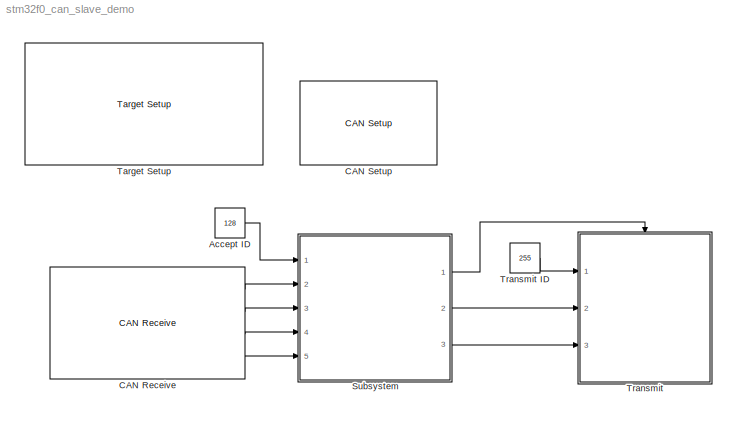
MODEL stm32f0_can_slave_demo
KIND model
CONFIG PreLoadFcn = waijung.modelPreload; % Required for working with Waijung Blockset. Do not remove.
BLOCK [Constant] Accept ID
  OutDataType = fixdt(1, 16)
  OutDataTypeMode = uint32
  OutDataTypeStr = uint32
  OutScaling = 2^0
  Value = 128
BLOCK [Reference] CAN Receive  REF=stm32f0_can_lib/CAN Receive
  Ports = [0, 4]
  SourceBlock = stm32f0_can_lib/CAN Receive
  SourceType = stm32f0_can
  blockid = CANReceive
  buffersize = 8
  canmodule = 1
  compat = 0
  conf = Rx
  confstr = [\"Standard\",\"Mask\",\"0\",\"0\",\"off\",\"uint32\",\"uint32\",\"Not used\",\"Not used\",\"Not used\",\"Not used\",\"Not used\",\"Not used\",\"8\",\"0\",\"0\",\"0\",\"4\"]
  data0type = uint32
  data1type = uint32
  data2type = Not used
  data3type = Not used
  data4type = Not used
  data5type = Not used
  data6type = Not used
  data7type = Not used
  datatype = single
  enableisr = off
  filtertype = Mask
  id = 0
  idmask = 0
  idtype = Standard
  inputarray = []
  inputlabelarray = {}
  outputarray = [ 5, 7, 7, 7]
  outputlabelarray = { 'Msg Pending','ID', 'D0 (uint32)', 'D1 (uint32)' }
  sampletime = inf
  sampletimestr = 0.01
  usedlc = off
BLOCK [Reference] CAN Setup  REF=stm32f0_can_lib/CAN Setup
  Ports = []
  SourceBlock = stm32f0_can_lib/CAN Setup
  SourceType = stm32f0_can
  advance = off
  autoretransmission = Enable
  bitrate = 250000
  bitrate_select = 250000
  blockid = CANSetup
  brp = 8
  bs1 = 15tq
  bs2 = 8tq
  canmodule = 1
  compat = 0
  conf = Setup
  confstr = [\"250000\",\"8\",\"B\",\"9\",\"B\",\"8\",\"1tq\",\"15tq\",\"8tq\",\"DISABLE\"]
  inputarray = []
  inputlabelarray = {}
  lastmodule = 1
  outputarray = []
  outputlabelarray = {}
  presc = 8
  remaprxpin = B8
  remaptxpin = B9
  rxpinstr = 8
  rxportstr = B
  sampletime = -1
  sampletimestr = 0.01
  sjw = 1tq
  timingconf = Prescaler
  tq = 1.6667e-007
  txpinstr = 9
  txportstr = B
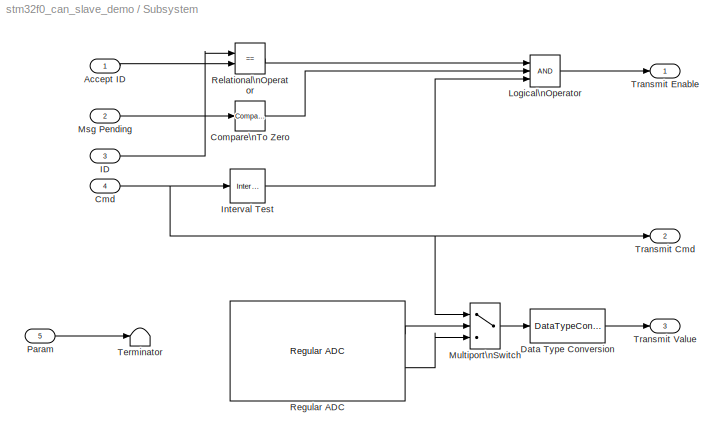
BLOCK [SubSystem] Subsystem
  FunctionWithSeparateData = off
  MaskHideContents = off
  MinAlgLoopOccurrences = off
  Opaque = off
  Ports = [5, 3]
  PropExecContextOutsideSubsystem = off
  RTWSystemCode = Auto
  RequestExecContextInheritance = off
BLOCK [Inport] Subsystem/Accept ID
  IconDisplay = Port number
  OutDataType = fixdt(1, 16)
  OutScaling = 2^0
BLOCK [Inport] Subsystem/Cmd
  IconDisplay = Port number
  OutDataType = fixdt(1, 16)
  OutScaling = 2^0
  Port = 4
BLOCK [Reference] Subsystem/Compare\nTo Zero  REF=simulink/Logic and Bit\nOperations/Compare\nTo Zero
  FunctionWithSeparateData = off
  LogicOutDataTypeMode = uint8
  Ports = [1, 1]
  RTWMemSecDataConstants = Inherit from model
  RTWMemSecDataInternal = Inherit from model
  RTWMemSecDataParameters = Inherit from model
  RTWMemSecFuncExecute = Inherit from model
  RTWMemSecFuncInitTerm = Inherit from model
  ShowPortLabels = FromPortIcon
  SourceBlock = simulink/Logic and Bit\nOperations/Compare\nTo Zero
  SourceType = Compare To Zero
  SystemSampleTime = -1
  ZeroCross = off
  relop = >
BLOCK [DataTypeConversion] Subsystem/Data Type Conversion
  OutDataType = fixdt(1, 16)
  OutDataTypeMode = uint32
  OutDataTypeStr = uint32
  OutScaling = 2^0
  RndMeth = Floor
  SaturateOnIntegerOverflow = off
BLOCK [Inport] Subsystem/ID
  IconDisplay = Port number
  OutDataType = fixdt(1, 16)
  OutScaling = 2^0
  Port = 3
BLOCK [Reference] Subsystem/Interval Test  REF=simulink/Logic and Bit\nOperations/Interval Test
  FunctionWithSeparateData = off
  IntervalClosedLeft = on
  IntervalClosedRight = on
  LogicOutDataTypeMode = uint8
  Ports = [1, 1]
  RTWMemSecDataConstants = Inherit from model
  RTWMemSecDataInternal = Inherit from model
  RTWMemSecDataParameters = Inherit from model
  RTWMemSecFuncExecute = Inherit from model
  RTWMemSecFuncInitTerm = Inherit from model
  ShowPortLabels = FromPortIcon
  SourceBlock = simulink/Logic and Bit\nOperations/Interval Test
  SourceType = Interval Test
  SystemSampleTime = -1
  lowlimit = 0
  uplimit = 1
BLOCK [Logic] Subsystem/Logical\nOperator
  AllPortsSameDT = off
  Inputs = 3
  LogicDataType = fixdt(0, 8)
  OutDataTypeMode = boolean
  OutDataTypeStr = boolean
  Ports = [3, 1]
BLOCK [Inport] Subsystem/Msg Pending
  IconDisplay = Port number
  OutDataType = fixdt(1, 16)
  OutScaling = 2^0
  Port = 2
BLOCK [MultiPortSwitch] Subsystem/Multiport\nSwitch
  InputSameDT = off
  Inputs = 2
  OutDataType = fixdt(1, 16)
  OutScaling = 2^0
  Ports = [3, 1]
  SaturateOnIntegerOverflow = off
  zeroidx = on
BLOCK [Inport] Subsystem/Param
  IconDisplay = Port number
  OutDataType = fixdt(1, 16)
  OutScaling = 2^0
  Port = 5
BLOCK [Reference] Subsystem/Regular ADC  REF=stm32f0_adc_lib/Regular ADC
  Ports = [0, 2]
  SourceBlock = stm32f0_adc_lib/Regular ADC
  SourceType = stm32f0_adc
  adc_ch0 = off
  adc_ch1 = off
  adc_ch10 = off
  adc_ch11 = off
  adc_ch12 = off
  adc_ch13 = off
  adc_ch14 = off
  adc_ch15 = off
  adc_ch16 = off
  adc_ch17 = off
  adc_ch18 = off
  adc_ch2 = off
  adc_ch3 = off
  adc_ch4 = off
  adc_ch5 = off
  adc_ch6 = on
  adc_ch7 = on
  adc_ch8 = off
  adc_ch9 = off
  blockid = SubsystemRegularADC
  compat = 0
  conf = adc
  coutputportlabel = voltage,current
  enablecustomportlabel = off
  inputportlabel = {}
  inputporttype = []
  inputportwidth = []
  module = 1
  optionstring = [\"1\",\"ADC_SampleTime_28_5Cycles\",\"dummy\",\"dummy\",\"dummy\",\"0\",\"A\",\"0\",\"0\",\"A\",\"1\",\"0\",\"A\",\"2\",\"0\",\"A\",\"3\",\"0\",\"A\",\"4\",\"0\",\"A\",\"5\",\"1\",\"A\",\"6\",\"1\",\"A\",\"7\",\"0\",\"B\",\"0\",\"0\",\"B\",\"1\",\"0\",\"C\",\"0\",\"0\",\"C\",\"1\",\"0\",\"C\",\"2\",\"0\",\"C\",\"3\",\"0\",\"C\",\"4\",\"0\",\"C\",\"5\",\"0\",\"A\",\"0\",\"0\",\"A\",\"0\",\"0\",\"A...<+61ch>
  outputdatatype = Single
  outputportlabel = {'ADC_IN6' 'ADC_IN7'}
  outputporttype = [1 1]
  outputportwidth = []
  portpinstr = 0
  sampletime = inf
  samplingtime = 28.5 Cycles
BLOCK [RelationalOperator] Subsystem/Relational\nOperator
  InputSameDT = off
  LogicDataType = fixdt(0, 8)
  LogicOutDataTypeMode = boolean
  Operator = ==
  OutDataTypeStr = boolean
BLOCK [Terminator] Subsystem/Terminator
BLOCK [Outport] Subsystem/Transmit Cmd
  IconDisplay = Port number
  OutDataType = fixdt(1, 16)
  OutScaling = 2^0
  Port = 2
BLOCK [Outport] Subsystem/Transmit Enable
  IconDisplay = Port number
  OutDataType = fixdt(1, 16)
  OutScaling = 2^0
BLOCK [Outport] Subsystem/Transmit Value
  IconDisplay = Port number
  OutDataType = fixdt(1, 16)
  OutScaling = 2^0
  Port = 3
BLOCK [Reference] Target Setup  REF=stm32f0_device_config_lib/Target Setup
  Ports = []
  Priority = 100
  SourceBlock = stm32f0_device_config_lib/Target Setup
  SourceType = stm32f0_target_setup
  assemblercontrolstr = $(patsubst %, -I%, .) -mcpu=cortex-m0 -mtune=cortex-m0 -mthumb -Wall -O3 -Wa,-amhls=$(<:.s=.lst) -D__STACK_SIZE=$(STACK_SIZE) -D__HEAP_SIZE=$(HEAP_SIZE)
  blockid = TargetSetup
  clockconfig = STM32F072B-DISCO Default (HSIOSC-8MHz/HCLK-48MHz)
  compiler = GNU ARM
  compilercontrolstr = $(patsubst %, -I%, .) -mcpu=cortex-m0 -mthumb -mabi=aapcs -Wall -O3 -mfloat-abi=soft -ffunction-sections -fdata-sections -fno-strict-aliasing -fno-builtin --short-enums
  editctrlstr = off
  enableautocompiledownload = on
  execprofile = None
  flashlength = 128k
  flashorigin = 0x8000000
  fullchiperase = off
  hclk = 48000000
  heapsize = 0x200
  hseval = 8000000
  lastprofileruart = 3
  linkercontrolstr = -T$(LD_SCRIPT) -Wl,-Map=$(MAP),--cref,--no-warn-mismatch -mcpu=cortex-m0 -mthumb  -Wall -O3 -mabi=aapcs -lc -specs=nosys.specs
  manualsetsampletime = on
  mcu = STM32F072CB (LQFP48)
  mcustr = STM32F072CB
  previous_compiler = GNU ARM
  profilerbaud = 500000
  profilerinitstr = 0.01,48000000,480000,500000,0
  profilertxpin = Not used
  profileruart = 3
  programmerinterface = aMG USB Connect
  ramlength = 16k
  ramorigin = 0x20000000
  runafterdownload = on
  sampletime = 0.01
  showmemoryconfiguration = off
  stacksize = 0x400
  stdlib = STM32F072
  system_stm32f0xx_c_path = <path>
  systickreloadvalue = 480000
  useextram = off
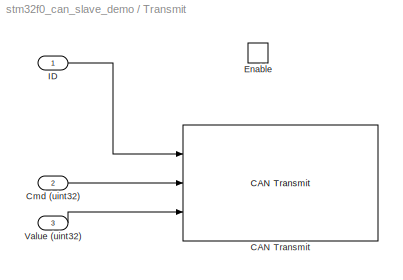
BLOCK [SubSystem] Transmit
  FunctionWithSeparateData = off
  MaskHideContents = off
  MinAlgLoopOccurrences = off
  Opaque = off
  Ports = [3, 0, 1]
  PropExecContextOutsideSubsystem = off
  RTWSystemCode = Auto
  RequestExecContextInheritance = off
BLOCK [Constant] Transmit ID
  OutDataType = fixdt(1, 16)
  OutDataTypeMode = uint32
  OutDataTypeStr = uint32
  OutScaling = 2^0
  Value = 255
BLOCK [Reference] Transmit/CAN Transmit  REF=stm32f0_can_lib/CAN Transmit
  Ports = [3]
  SourceBlock = stm32f0_can_lib/CAN Transmit
  SourceType = stm32f0_can
  blockid = TransmitCANTransmit
  canmodule = 1
  compat = 0
  conf = Tx
  confstr = [\"Blocking\",\"0.1\",\"Standard\",\"off\",\"0\",\"on\",\"8\",\"off\",\"uint32\",\"uint32\",\"Not used\",\"Not used\",\"Not used\",\"Not used\",\"Not used\",\"Not used\"]
  data0type = uint32
  data1type = uint32
  data2type = Not used
  data3type = Not used
  data4type = Not used
  data5type = Not used
  data6type = Not used
  data7type = Not used
  datatype = single
  dlc = 8
  enablestatus = off
  id = 0
  idtype = Standard
  inputarray = [ -1, 7, 7]
  inputlabelarray = { 'ID', 'D0 (uint32)', 'D1 (uint32)' }
  outputarray = []
  outputlabelarray = {}
  sampletime = -1
  sampletimestr = 0.01
  specificdlc = on
  specificid = off
  timeout = 0.1
  transfer = Blocking
BLOCK [Inport] Transmit/Cmd (uint32)
  IconDisplay = Port number
  Port = 2
BLOCK [EnablePort] Transmit/Enable
  Ports = []
BLOCK [Inport] Transmit/ID
  IconDisplay = Port number
BLOCK [Inport] Transmit/Value (uint32)
  IconDisplay = Port number
  Port = 3
LINE Accept ID:1 -> Subsystem:1
LINE CAN Receive:1 -> Subsystem:2
LINE CAN Receive:2 -> Subsystem:3
LINE CAN Receive:3 -> Subsystem:4
LINE CAN Receive:4 -> Subsystem:5
LINE Subsystem/Accept ID:1 -> Subsystem/Relational\nOperator:2
NET Subsystem/Cmd:1 -> Subsystem/Interval Test:1, Subsystem/Multiport\nSwitch:1, Subsystem/Transmit Cmd:1
LINE Subsystem/Compare\nTo Zero:1 -> Subsystem/Logical\nOperator:2
LINE Subsystem/Data Type Conversion:1 -> Subsystem/Transmit Value:1
LINE Subsystem/ID:1 -> Subsystem/Relational\nOperator:1
LINE Subsystem/Interval Test:1 -> Subsystem/Logical\nOperator:3
LINE Subsystem/Logical\nOperator:1 -> Subsystem/Transmit Enable:1
LINE Subsystem/Msg Pending:1 -> Subsystem/Compare\nTo Zero:1
LINE Subsystem/Multiport\nSwitch:1 -> Subsystem/Data Type Conversion:1
LINE Subsystem/Param:1 -> Subsystem/Terminator:1
LINE Subsystem/Regular ADC:1 -> Subsystem/Multiport\nSwitch:2
LINE Subsystem/Regular ADC:2 -> Subsystem/Multiport\nSwitch:3
LINE Subsystem/Relational\nOperator:1 -> Subsystem/Logical\nOperator:1
LINE Subsystem:1 -> Transmit:enable
LINE Subsystem:2 -> Transmit:2
LINE Subsystem:3 -> Transmit:3
LINE Transmit ID:1 -> Transmit:1
LINE Transmit/Cmd (uint32):1 -> Transmit/CAN Transmit:2
LINE Transmit/ID:1 -> Transmit/CAN Transmit:1
LINE Transmit/Value (uint32):1 -> Transmit/CAN Transmit:3
note: NET lines group one-source signal fan-out (src -> all destinations, sorted); 1:1 wires keep LINE
note: 1 file-system path scrubbed to <path> (not preserved elsewhere — flat text is the only slx artifact)
